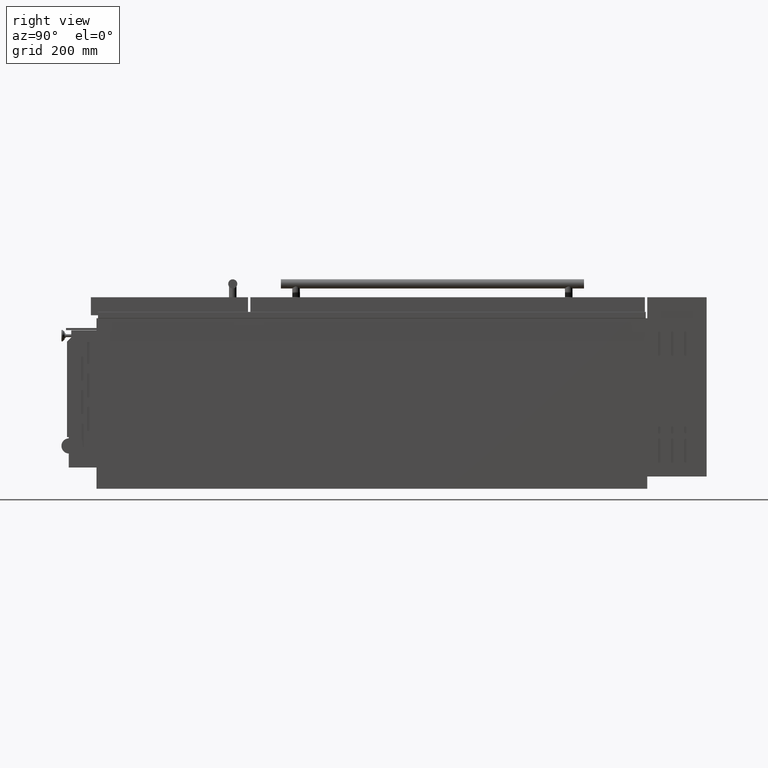
[diagram: clean part render]
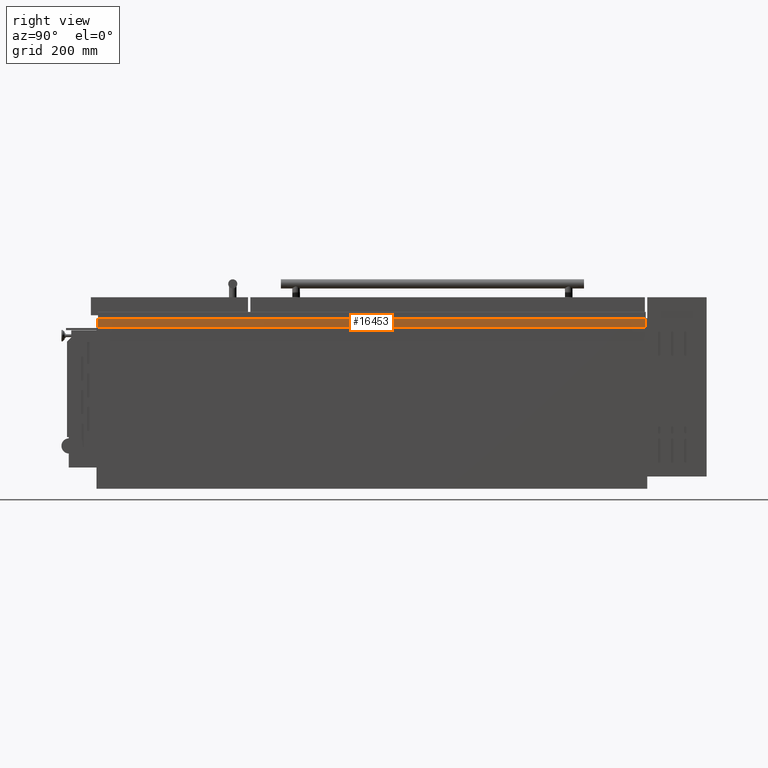
[diagram: same view with one face highlighted and labeled with its STEP entity id]
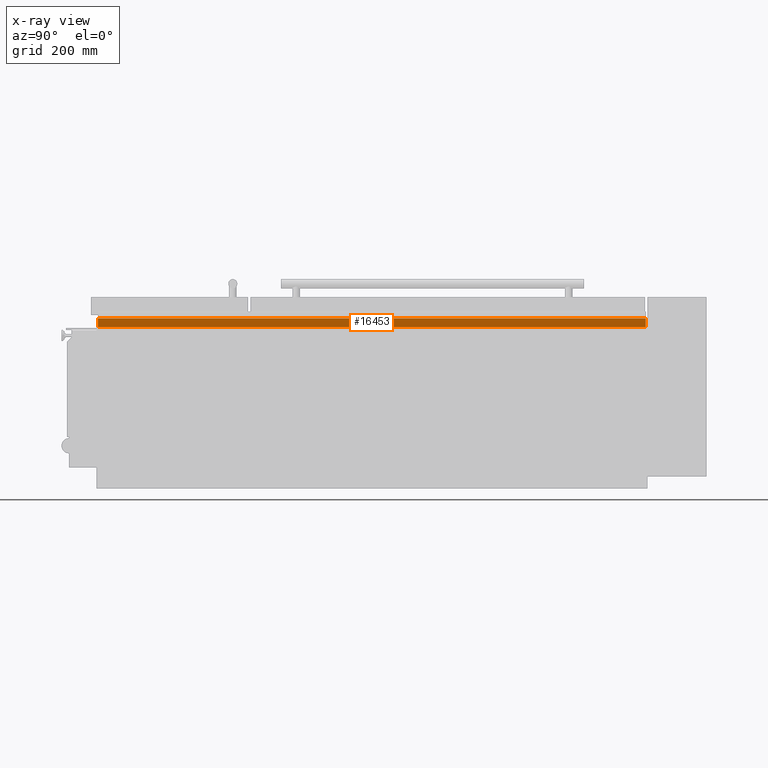
[diagram: x-ray of the same camera — body ghosted, the highlighted face saturated]
A machine part, right view. The second image highlights one B-rep face of the part: STEP entity #16453.
The next image is the same camera in x-ray: the body ghosted, the highlighted face saturated — about 0% of this face is hidden behind the body in this view.
In plain terms, the highlighted planar face has unit normal (1, -0, 0).
Its self-contained STEP definition (entity closure, byte-faithful):
#1379 = DIRECTION ( 'NONE',  ( 1.000000000000000000, -0.0000000000000000000, 0.0000000000000000000 ) ) ;
#1392 = EDGE_CURVE ( 'NONE', #2437, #14747, #10166, .T. ) ;
#2157 = EDGE_CURVE ( 'NONE', #10447, #14747, #17976, .T. ) ;
#2188 = EDGE_CURVE ( 'NONE', #13307, #10447, #14231, .T. ) ;
#2437 = VERTEX_POINT ( 'NONE', #7425 ) ;
#2595 = ORIENTED_EDGE ( 'NONE', *, *, #2188, .T. ) ;
#2675 = CARTESIAN_POINT ( 'NONE',  ( 444.4999998500005100, -851.3500000000000200, 250.0000030000001900 ) ) ;
#4059 = VECTOR ( 'NONE', #7956, 1000.000000000000000 ) ;
#4170 = DIRECTION ( 'NONE',  ( 0.0000000000000000000, 0.0000000000000000000, -1.000000000000000000 ) ) ;
#4588 = LINE ( 'NONE', #18055, #6009 ) ;
#6009 = VECTOR ( 'NONE', #13532, 1000.000000000000000 ) ;
#6399 = CARTESIAN_POINT ( 'NONE',  ( 444.4999998500005100, 948.3500000000001400, 279.5000000500002700 ) ) ;
#7425 = CARTESIAN_POINT ( 'NONE',  ( 444.4999998500005100, 948.3500000000001400, 279.5000000500002700 ) ) ;
#7766 = AXIS2_PLACEMENT_3D ( 'NONE', #16249, #1379, #4170 ) ;
#7956 = DIRECTION ( 'NONE',  ( 0.0000000000000000000, 0.0000000000000000000, -1.000000000000000000 ) ) ;
#8013 = FACE_OUTER_BOUND ( 'NONE', #13138, .T. ) ;
#8223 = CARTESIAN_POINT ( 'NONE',  ( 444.4999998500005100, -906.4013272815589100, 250.0000030000001900 ) ) ;
#8365 = VECTOR ( 'NONE', #14153, 1000.000000000000000 ) ;
#8811 = EDGE_CURVE ( 'NONE', #13307, #2437, #4588, .T. ) ;
#9617 = ORIENTED_EDGE ( 'NONE', *, *, #1392, .F. ) ;
#10166 = LINE ( 'NONE', #6399, #4059 ) ;
#10447 = VERTEX_POINT ( 'NONE', #2675 ) ;
#11520 = CARTESIAN_POINT ( 'NONE',  ( 444.4999998500005100, -851.3500000000000200, 279.5000000500002700 ) ) ;
#13138 = EDGE_LOOP ( 'NONE', ( #14848, #2595, #17100, #9617 ) ) ;
#13307 = VERTEX_POINT ( 'NONE', #11520 ) ;
#13532 = DIRECTION ( 'NONE',  ( 0.0000000000000000000, 1.000000000000000000, 0.0000000000000000000 ) ) ;
#14012 = CARTESIAN_POINT ( 'NONE',  ( 444.4999998500005100, -851.3500000000000200, 279.5000000500002700 ) ) ;
#14153 = DIRECTION ( 'NONE',  ( 0.0000000000000000000, 1.000000000000000000, 0.0000000000000000000 ) ) ;
#14231 = LINE ( 'NONE', #14012, #18443 ) ;
#14747 = VERTEX_POINT ( 'NONE', #19335 ) ;
#14848 = ORIENTED_EDGE ( 'NONE', *, *, #8811, .F. ) ;
#16249 = CARTESIAN_POINT ( 'NONE',  ( 444.4999998500005100, -906.4013272815589100, 279.5000000500002700 ) ) ;
#16453 = ADVANCED_FACE ( 'NONE', ( #8013 ), #19329, .T. ) ;
#17100 = ORIENTED_EDGE ( 'NONE', *, *, #2157, .T. ) ;
#17976 = LINE ( 'NONE', #8223, #8365 ) ;
#18055 = CARTESIAN_POINT ( 'NONE',  ( 444.4999998500005100, -906.4013272815589100, 279.5000000500002700 ) ) ;
#18443 = VECTOR ( 'NONE', #18529, 1000.000000000000000 ) ;
#18529 = DIRECTION ( 'NONE',  ( 0.0000000000000000000, 0.0000000000000000000, -1.000000000000000000 ) ) ;
#19329 = PLANE ( 'NONE',  #7766 ) ;
#19335 = CARTESIAN_POINT ( 'NONE',  ( 444.4999998500005100, 948.3500000000001400, 250.0000030000001900 ) ) ;